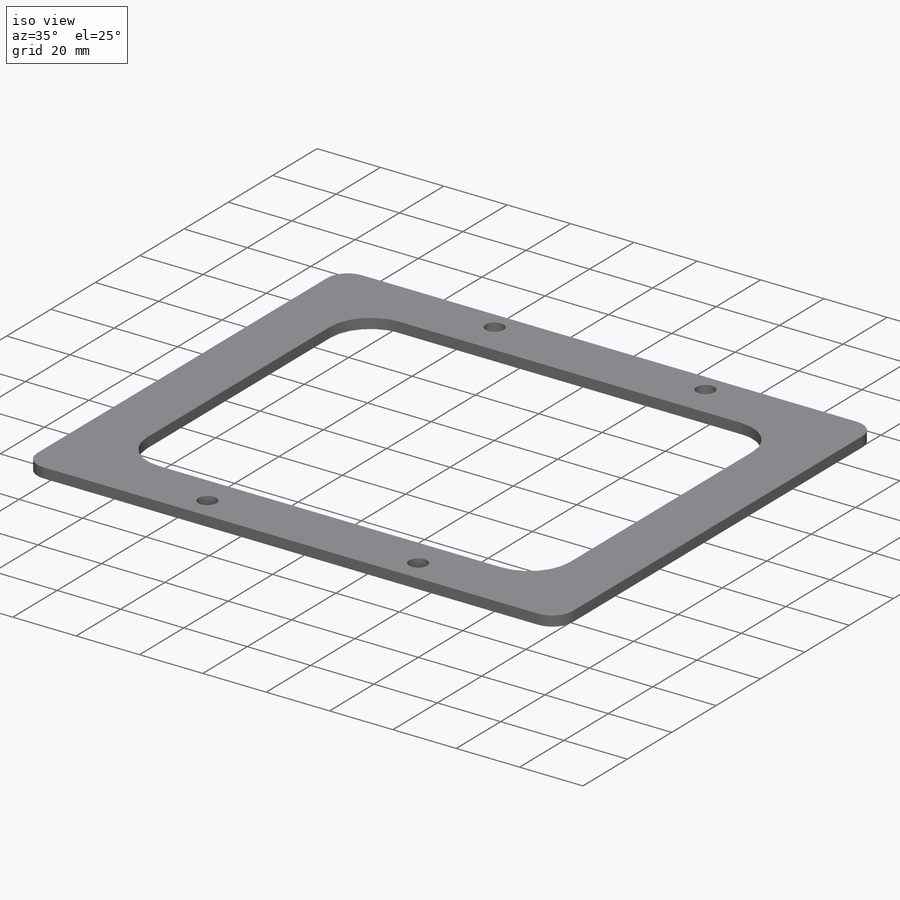
[diagram: iso view]
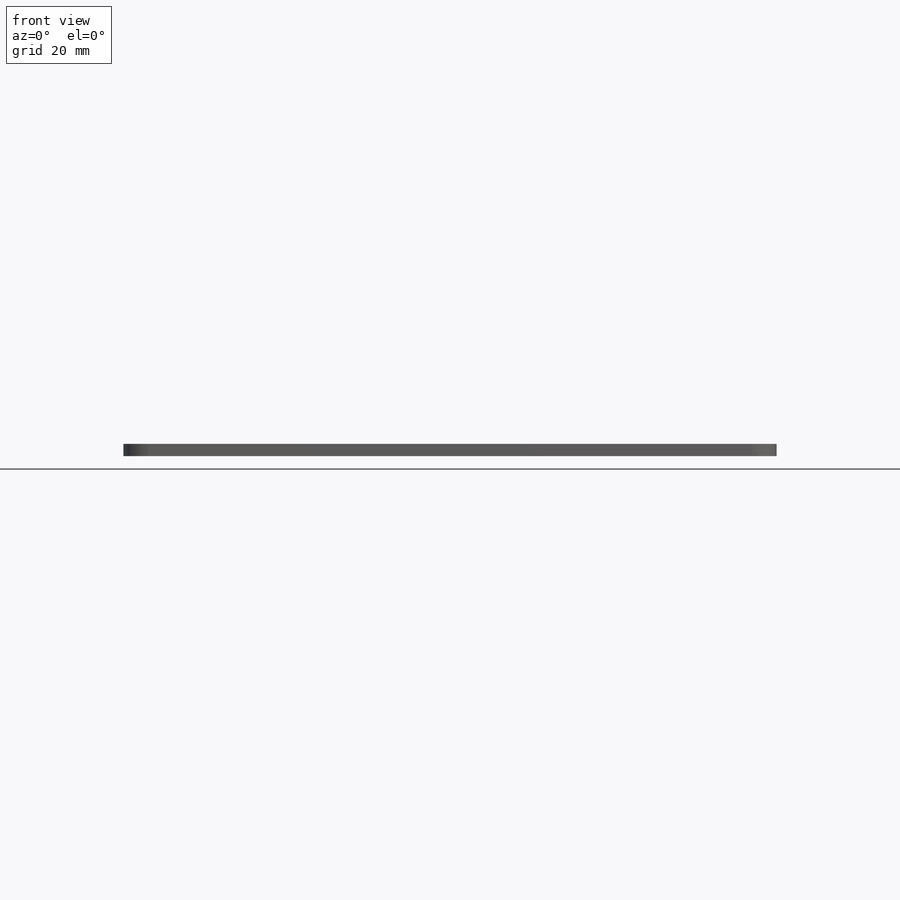
[diagram: front view]
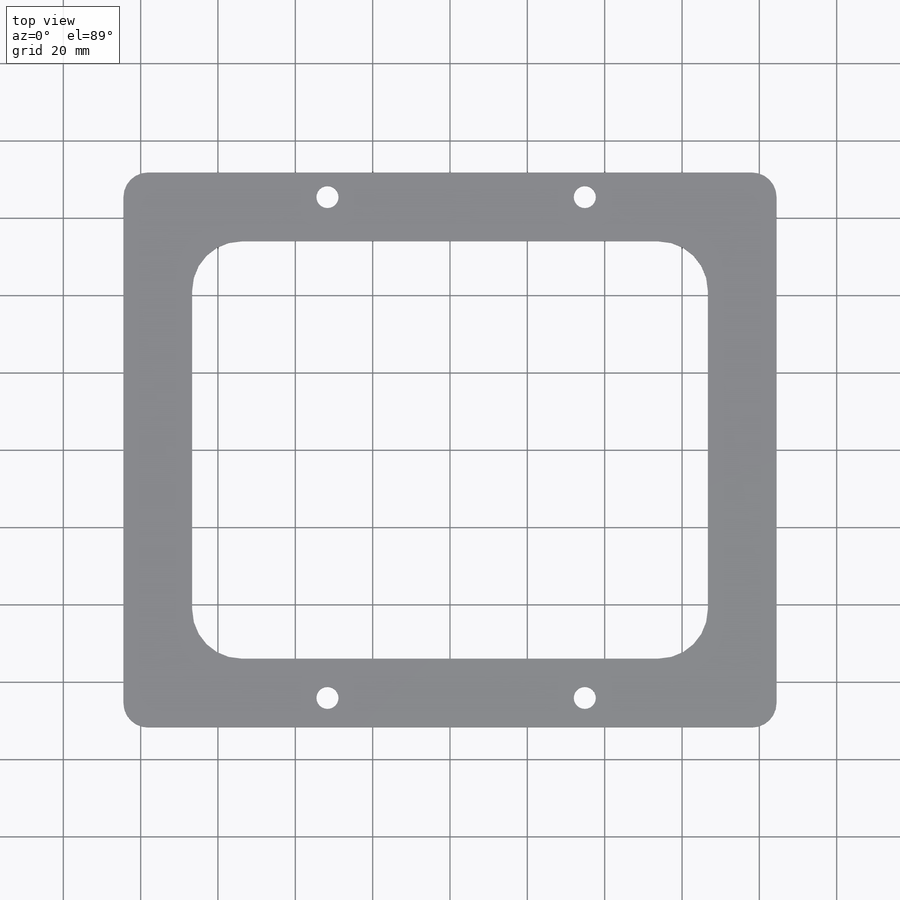
[diagram: top view]
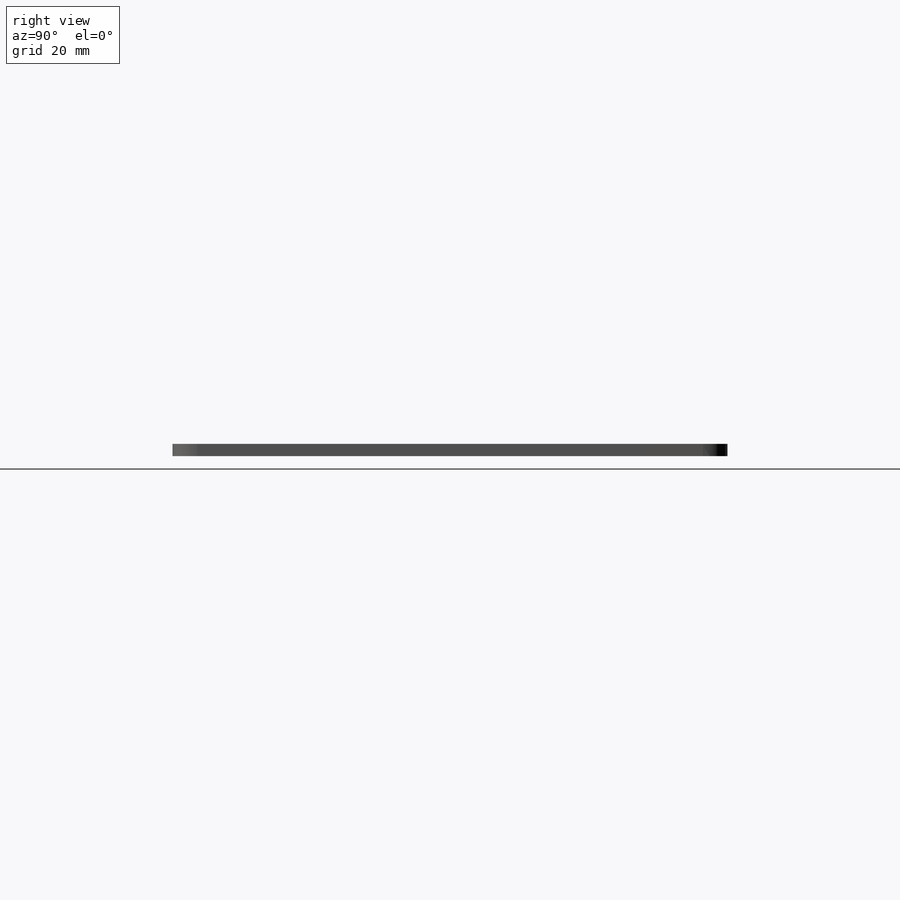
[diagram: right view]
SOLIDWORKS PART (.sldprt)
format: sldprt  version: not decoded by parser v0  size: 208,384 bytes
history: native  units: mm
features: sketch x2, fillet x2, material x1, extrude x1, cut_extrude x1, pattern_linear x1 (+13 scaffold rows collapsed)
feature tree (21):
  scaffold x13  (default folders/planes/origin — collapsed)
  material  "Material <not specified>"
  sketch  "Sketch1"  dims[D1=107.95mm D2=133.35mm D3=17.78mm]
  extrude  "Boss-Extrude1"  Depth=3.175mm
  fillet  "Fillet1"  Radius=6.35mm
  fillet  "Fillet2"  Radius=12.7mm
  sketch  "Sketch2"  dims[c1.D1=5.715mm c1.D2=8.89mm c1.D3=52.7685mm c2.D2=11.43mm]
  cut_extrude  "Cut-Extrude1"  [1 undecoded]
  pattern_linear  "LPattern1"  Count1=2 Count2=2 Spacing1=66.548mm Spacing2=129.54mm
decode coverage: 6 of 7 modeling features carry decoded parameters
note: 1 parameter value undecoded
note: suppression state not decoded; provenance and decode notes live in map.json
